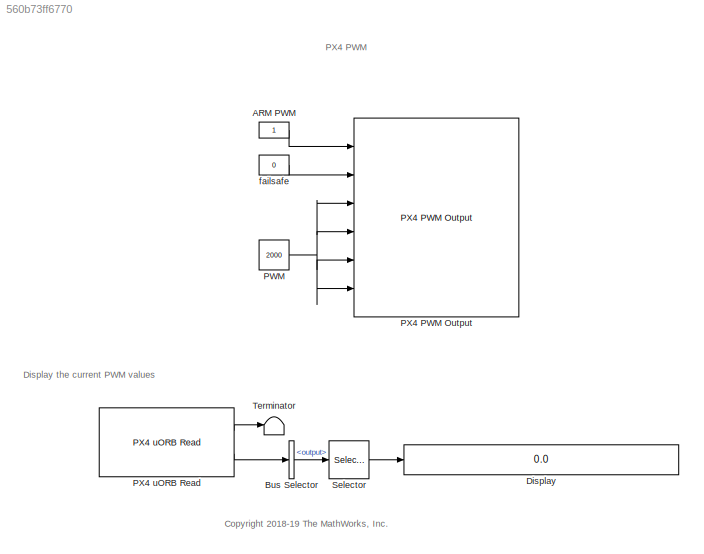
MODEL slx_560b73ff6770
KIND model
CONFIG AbsTol = auto
CONFIG EnableMultiTasking = on
CONFIG FixedStep = auto
CONFIG MaxStep = auto
CONFIG MinStep = auto
CONFIG RelTol = 1e-3
CONFIG SampleTimeConstraint = Unconstrained
CONFIG SolverName = FixedStepAuto
CONFIG StartTime = 0.0
CONFIG StopTime = inf
BLOCK [Constant] ARM PWM
  OutDataTypeStr = boolean
  SampleTime = 0.01
BLOCK [BusSelector] Bus Selector
  OutputSignals = output
  Ports = [1, 1]
BLOCK [Display] Display
  Decimation = 1
  Ports = [1]
BLOCK [Constant] PWM
  OutDataTypeStr = uint16
  SampleTime = 0.01
  Value = 2000
BLOCK [Reference] PX4 PWM Output  REF=px4lib/PX4 PWM Output
  Ports = [6]
  SourceBlock = px4lib/PX4 PWM Output
  SourceProductBaseCode = PX4AUTOPILOTS
  SourceType = PX4 PWM Output
BLOCK [Reference] PX4 uORB Read  REF=px4uORBlib/PX4 uORB Read
  Ports = [0, 2]
  SourceBlock = px4uORBlib/PX4 uORB Read
  SourceProductBaseCode = PX4AUTOPILOTS
  SourceType = PX4 uORB Read
BLOCK [Selector] Selector
  IndexOptions = Index vector (dialog)
  Indices = [1 2 3 4]
  InputPortWidth = 16
  OutputSizes = 1
  Ports = [1, 1]
BLOCK [Terminator] Terminator
BLOCK [Constant] failsafe
  OutDataTypeStr = boolean
  SampleTime = 0.01
  Value = 0
ANNOTATION (root): <copyright redacted>
ANNOTATION (root): Display the current PWM values
ANNOTATION (root): PX4 PWM
LINE ARM PWM:1 -> PX4 PWM Output:1
LINE Bus Selector:1 -> Selector:1
NET PWM:1 -> PX4 PWM Output:3, PX4 PWM Output:4, PX4 PWM Output:5, PX4 PWM Output:6
LINE PX4 uORB Read:1 -> Terminator:1
LINE PX4 uORB Read:2 -> Bus Selector:1
LINE Selector:1 -> Display:1
LINE failsafe:1 -> PX4 PWM Output:2
note: NET lines group one-source signal fan-out (src -> all destinations, sorted); 1:1 wires keep LINE
